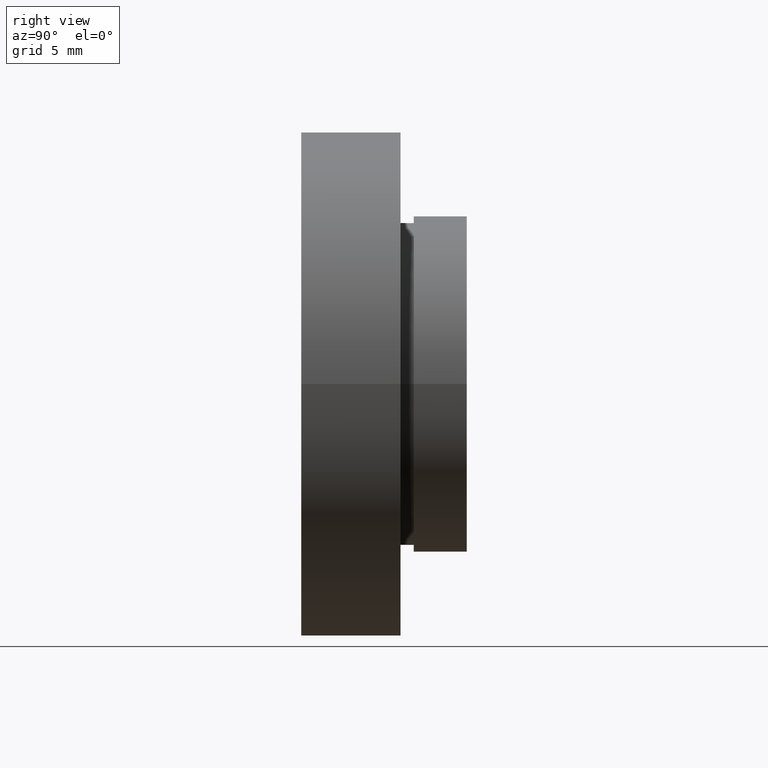
[diagram: clean part render]
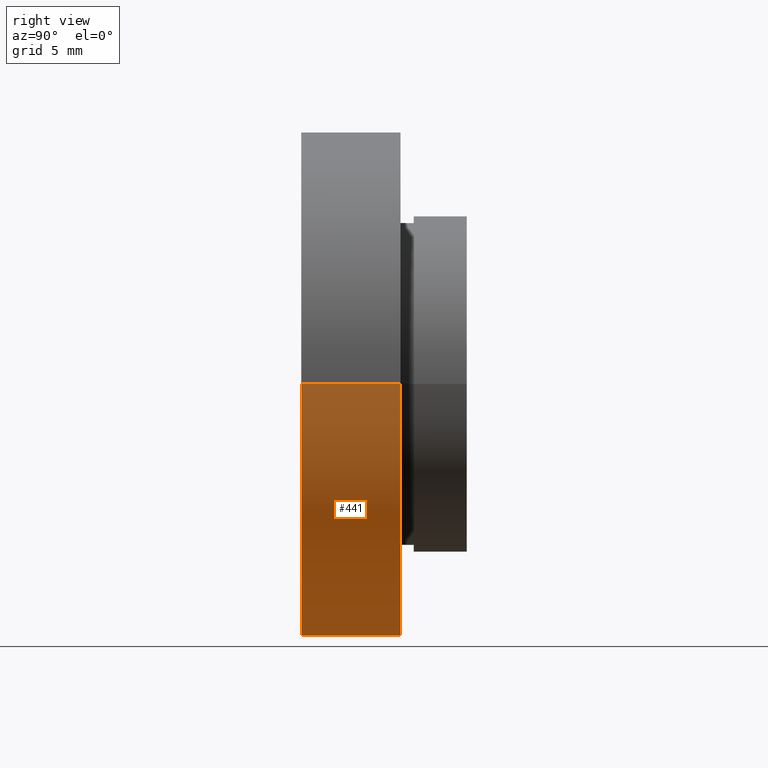
[diagram: same view with one face highlighted and labeled with its STEP entity id]
A machine part, right view. The second image highlights one B-rep face of the part: STEP entity #441.
In plain terms, the highlighted cylindrical surface (partial cylindrical patch) has radius 19.05 mm, axis along (-0, 1, -0).
Its self-contained STEP definition (entity closure, byte-faithful):
#23 = DIRECTION ( 'NONE',  ( -1.224646799147351000E-016, 1.000000000000000000, -0.0000000000000000000 ) ) ;
#34 = ORIENTED_EDGE ( 'NONE', *, *, #541, .F. ) ;
#38 = CARTESIAN_POINT ( 'NONE',  ( 19.05000000000000400, -1.136494799577910300E-015, 2.332952152375708400E-015 ) ) ;
#43 = CIRCLE ( 'NONE', #592, 19.05000000000000400 ) ;
#66 = LINE ( 'NONE', #111, #500 ) ;
#81 = ORIENTED_EDGE ( 'NONE', *, *, #404, .T. ) ;
#95 = DIRECTION ( 'NONE',  ( -1.224646799147351000E-016, 1.000000000000000000, -0.0000000000000000000 ) ) ;
#101 = DIRECTION ( 'NONE',  ( -1.224646799147351000E-016, 1.000000000000000000, -0.0000000000000000000 ) ) ;
#111 = CARTESIAN_POINT ( 'NONE',  ( 19.05000000000000400, 16.88601823708208000, 2.332952152375708400E-015 ) ) ;
#117 = CARTESIAN_POINT ( 'NONE',  ( -19.05000000000000400, 16.88601823708207300, 0.0000000000000000000 ) ) ;
#126 = CARTESIAN_POINT ( 'NONE',  ( 19.05000000000000400, 7.499999999999999100, 2.332952152375708400E-015 ) ) ;
#159 = DIRECTION ( 'NONE',  ( -1.224646799147351000E-016, 1.000000000000000000, -0.0000000000000000000 ) ) ;
#191 = AXIS2_PLACEMENT_3D ( 'NONE', #559, #23, #612 ) ;
#194 = DIRECTION ( 'NONE',  ( -1.000000000000000000, -1.365923996832131400E-016, 0.0000000000000000000 ) ) ;
#195 = CIRCLE ( 'NONE', #437, 19.05000000000000100 ) ;
#216 = CYLINDRICAL_SURFACE ( 'NONE', #191, 19.05000000000000400 ) ;
#250 = EDGE_CURVE ( 'NONE', #512, #554, #545, .T. ) ;
#261 = VERTEX_POINT ( 'NONE', #126 ) ;
#321 = EDGE_CURVE ( 'NONE', #484, #261, #66, .T. ) ;
#330 = CARTESIAN_POINT ( 'NONE',  ( -19.04999999999999700, -5.802399104329318300E-015, 0.0000000000000000000 ) ) ;
#353 = ORIENTED_EDGE ( 'NONE', *, *, #321, .F. ) ;
#404 = EDGE_CURVE ( 'NONE', #484, #512, #195, .T. ) ;
#416 = CARTESIAN_POINT ( 'NONE',  ( 2.067940818438636500E-015, -3.469446951953614200E-015, 0.0000000000000000000 ) ) ;
#418 = EDGE_LOOP ( 'NONE', ( #353, #81, #615, #34 ) ) ;
#437 = AXIS2_PLACEMENT_3D ( 'NONE', #416, #95, #599 ) ;
#441 = ADVANCED_FACE ( 'NONE', ( #490 ), #216, .T. ) ;
#468 = CARTESIAN_POINT ( 'NONE',  ( -19.05000000000000400, 7.499999999999993800, 0.0000000000000000000 ) ) ;
#484 = VERTEX_POINT ( 'NONE', #38 ) ;
#490 = FACE_OUTER_BOUND ( 'NONE', #418, .T. ) ;
#500 = VECTOR ( 'NONE', #159, 1000.000000000000000 ) ;
#512 = VERTEX_POINT ( 'NONE', #330 ) ;
#541 = EDGE_CURVE ( 'NONE', #261, #554, #43, .T. ) ;
#545 = LINE ( 'NONE', #117, #617 ) ;
#554 = VERTEX_POINT ( 'NONE', #468 ) ;
#559 = CARTESIAN_POINT ( 'NONE',  ( 0.0000000000000000000, 16.88601823708207700, 0.0000000000000000000 ) ) ;
#565 = CARTESIAN_POINT ( 'NONE',  ( 1.149455719078123100E-015, 7.499999999999996400, 0.0000000000000000000 ) ) ;
#586 = DIRECTION ( 'NONE',  ( -1.224646799147351000E-016, 1.000000000000000000, -0.0000000000000000000 ) ) ;
#592 = AXIS2_PLACEMENT_3D ( 'NONE', #565, #101, #194 ) ;
#599 = DIRECTION ( 'NONE',  ( -1.000000000000000000, -1.224646799147351200E-016, 0.0000000000000000000 ) ) ;
#612 = DIRECTION ( 'NONE',  ( -1.000000000000000000, -1.821231995776175000E-016, 0.0000000000000000000 ) ) ;
#615 = ORIENTED_EDGE ( 'NONE', *, *, #250, .T. ) ;
#617 = VECTOR ( 'NONE', #586, 1000.000000000000000 ) ;